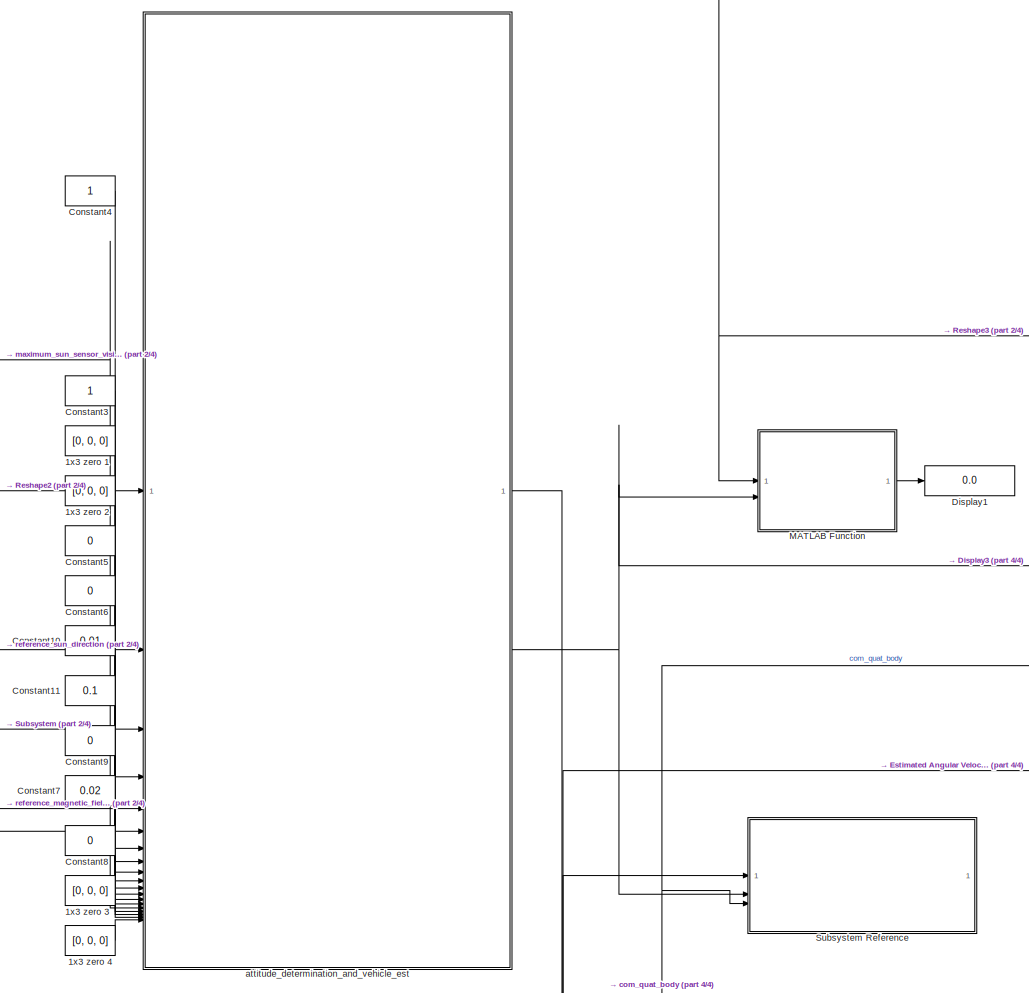
[diagram: root canvas - part 1/4, right side, full height]
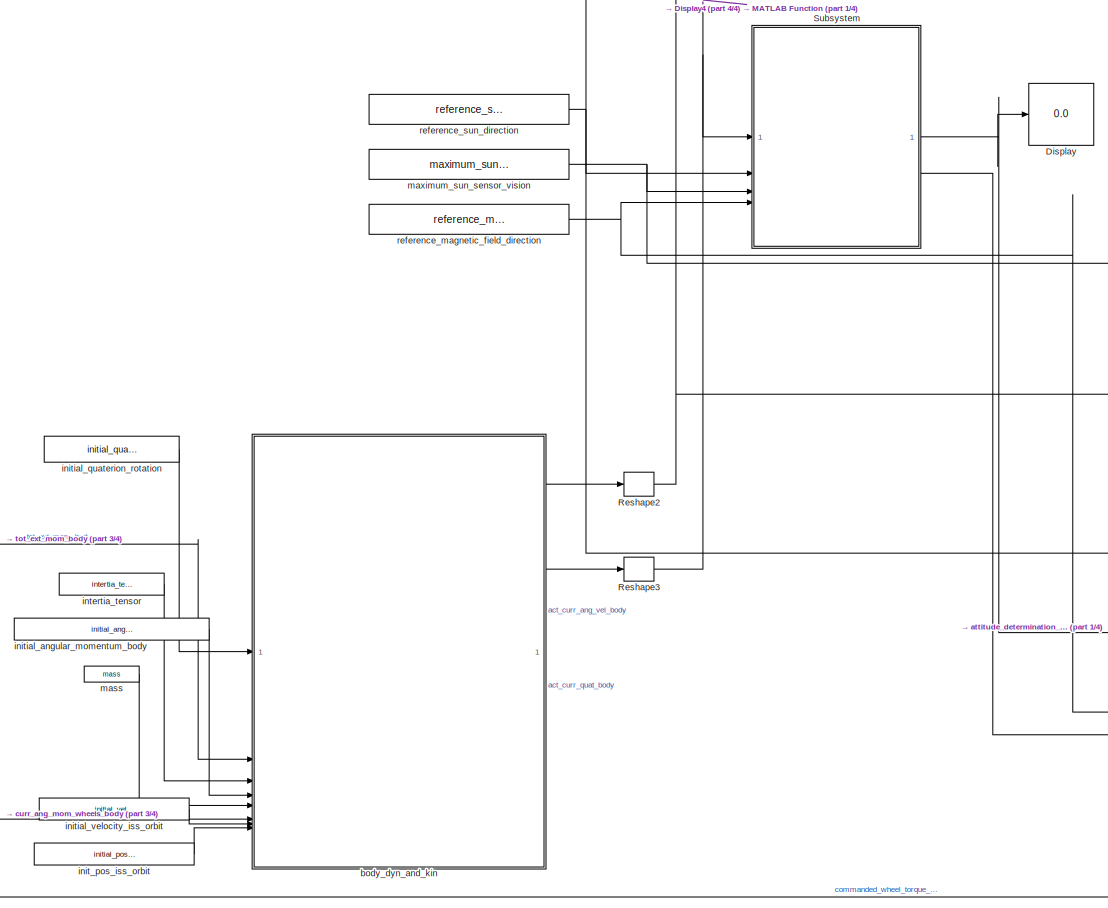
[diagram: root canvas - part 2/4, center side, full height]
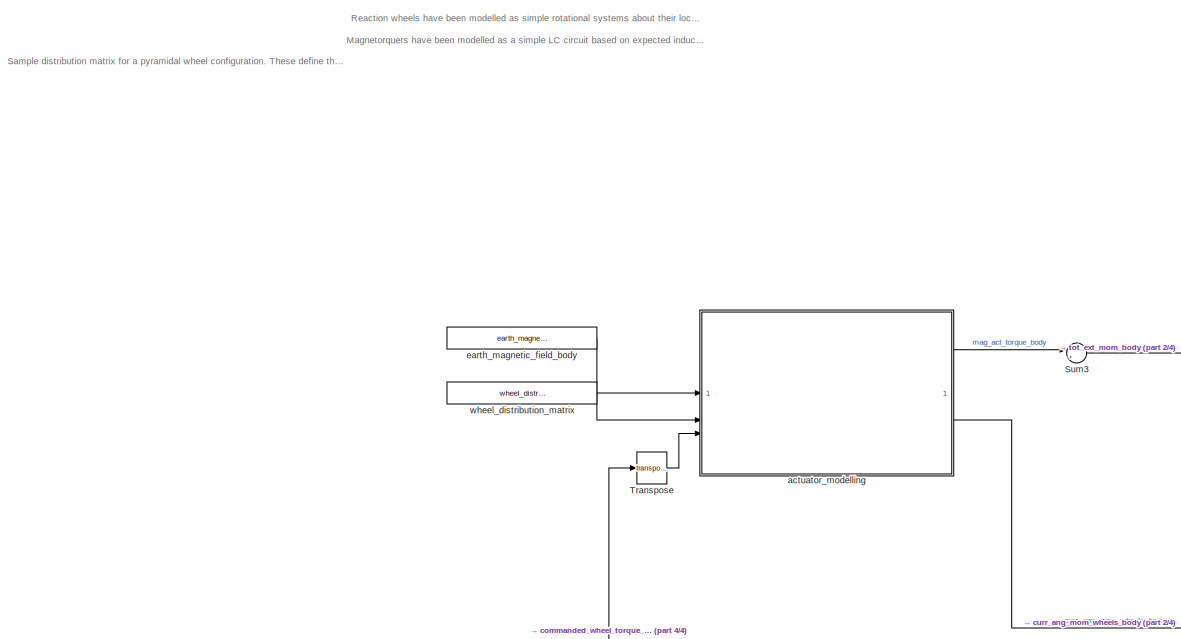
[diagram: root canvas - part 3/4, middle left region]
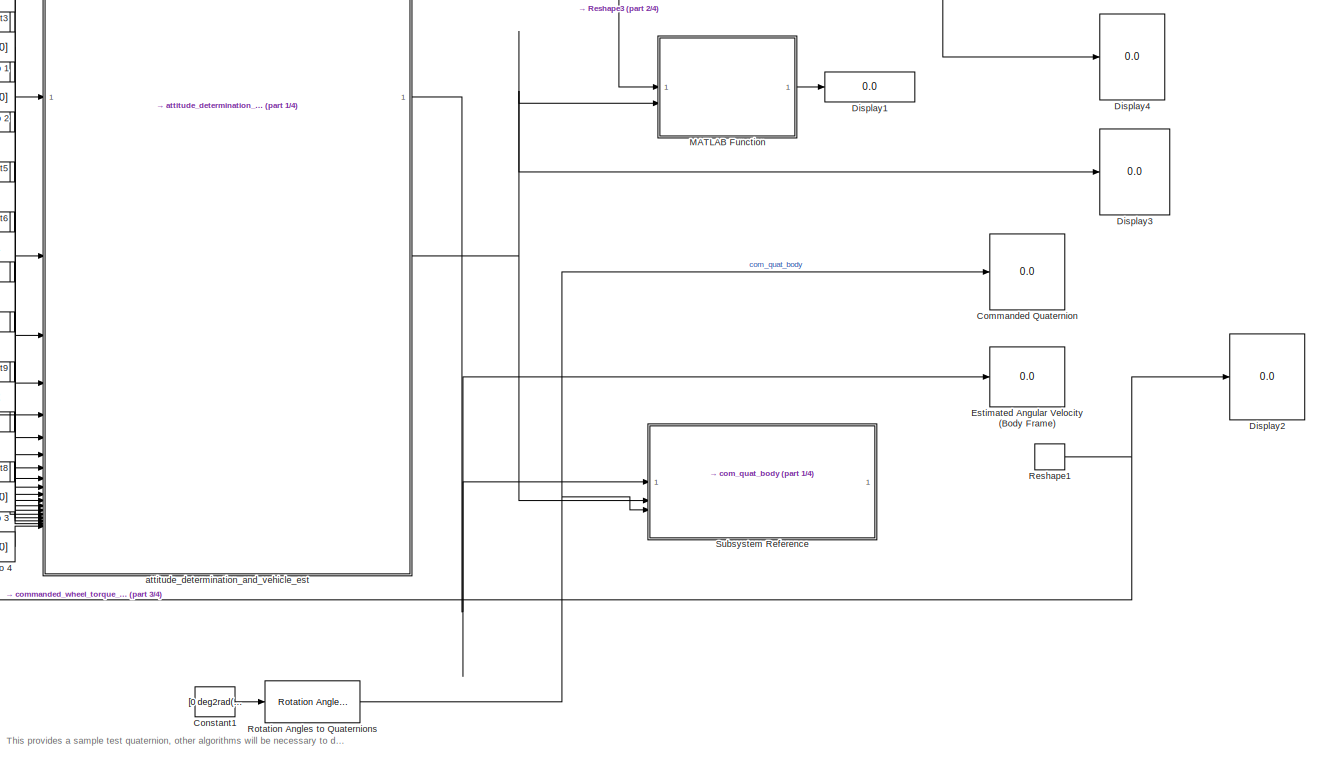
[diagram: root canvas - part 4/4, bottom right region]
MODEL slx_5dd3871f96f5
KIND model
CONFIG AbsTol = auto
CONFIG EnableMultiTasking = off
CONFIG FixedStep = 0.02
CONFIG MaxStep = 1
CONFIG MinStep = 0.001
CONFIG RelTol = 1e-3
CONFIG SampleTimeConstraint = Unconstrained
CONFIG SolverName = FixedStepAuto
CONFIG StartTime = 0.0
CONFIG StopTime = 7200
WORKSPACE source: mxarray member
WORKSPACE earth_magnetic_field_body = [0 0 0]
WORKSPACE initial_angular_momentum_body = 0
WORKSPACE initial_position_iss_orbit = 0
WORKSPACE initial_quaterion_rotation = 0
WORKSPACE initial_velocity_iss_orbit = 0
WORKSPACE intertia_tensor = 0
WORKSPACE mass = 0
WORKSPACE maximum_sun_sensor_vision = 0
WORKSPACE reference_magnetic_field_direction = 0
WORKSPACE reference_sun_direction = 0
WORKSPACE wheel_distribution_matrix = [1 0 0 0 1 0 0 0 1 0 0 1]
BLOCK [Constant] 1x3 zero 1
  Value = [0, 0, 0]
BLOCK [Constant] 1x3 zero 2
  Value = [0, 0, 0]
BLOCK [Constant] 1x3 zero 3
  Value = [0, 0, 0]
BLOCK [Constant] 1x3 zero 4
  Value = [0, 0, 0]
BLOCK [Display] Commanded Quaternion
  Decimation = 1
BLOCK [Constant] Constant1
  Value = [0 deg2rad(135) deg2rad(-30)]
BLOCK [Constant] Constant10
  Value = 0.01
BLOCK [Constant] Constant11
  Value = 0.1
BLOCK [Constant] Constant3
  OutDataTypeStr = boolean
BLOCK [Constant] Constant4
  OutDataTypeStr = boolean
BLOCK [Constant] Constant5
  OutDataTypeStr = boolean
  Value = 0
BLOCK [Constant] Constant6
  OutDataTypeStr = boolean
  Value = 0
BLOCK [Constant] Constant7
  Value = 0.02
BLOCK [Constant] Constant8
  OutDataTypeStr = boolean
  Value = 0
BLOCK [Constant] Constant9
  Value = 0
BLOCK [Display] Display
  Decimation = 1
BLOCK [Display] Display1
  Decimation = 1
BLOCK [Display] Display2
  Decimation = 1
BLOCK [Display] Display3
  Decimation = 1
BLOCK [Display] Display4
  Decimation = 1
BLOCK [Display] Estimated Angular Velocity (Body Frame)
  Decimation = 1
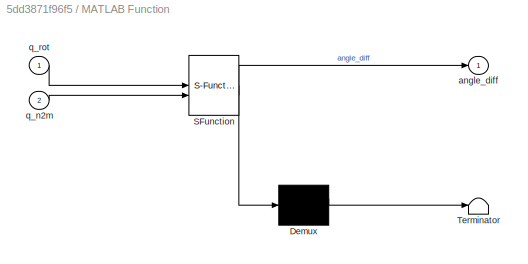
BLOCK [SubSystem] MATLAB Function
  ErrorFcn = Stateflow.Translate.translate
  PermitHierarchicalResolution = ExplicitOnly
  SFBlockType = MATLAB Function
  TreatAsAtomicUnit = on
BLOCK [Demux] MATLAB Function/ Demux 
  Outputs = 1
BLOCK [S-Function] MATLAB Function/ SFunction 
  EnableBusSupport = on
  FunctionName = sf_sfun
  PortCounts = [2 2]
  SFcnIsStateOwnerBlock = off
  SFunctionDeploymentMode = off
  Tag = Stateflow S-Function 3
BLOCK [Terminator] MATLAB Function/ Terminator 
BLOCK [Outport] MATLAB Function/angle_diff
BLOCK [Inport] MATLAB Function/q_n2m
  Port = 2
BLOCK [Inport] MATLAB Function/q_rot
BLOCK [Reshape] Reshape1
  OutputDimensionality = Row vector (2-D)
BLOCK [Reshape] Reshape2
  OutputDimensionality = Row vector (2-D)
BLOCK [Reshape] Reshape3
  OutputDimensionality = Row vector (2-D)
BLOCK [Reference] Rotation Angles to Quaternions  REF=sharedtransform/Rotation Angles to Quaternions
  AttributesFormatString = Rotation Order: %<rotationOrder>
  LibrarySourceBlock = aerolibtransform2/Rotation Angles to Quaternions
  SourceBlock = sharedtransform/Rotation Angles to Quaternions
  SourceType = Ang2Quat
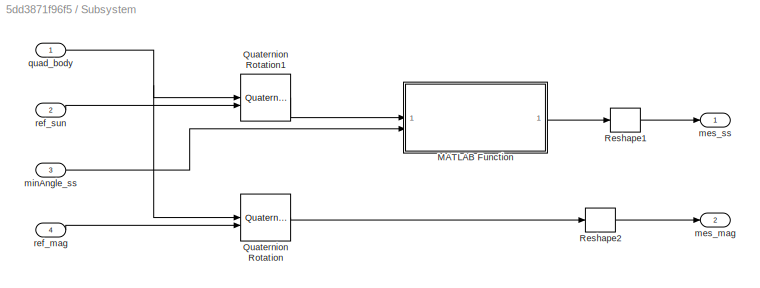
BLOCK [SubSystem] Subsystem
  TreatAsAtomicUnit = on
BLOCK [SubSystem] Subsystem Reference
  ReferencedSubsystem = attitude_control
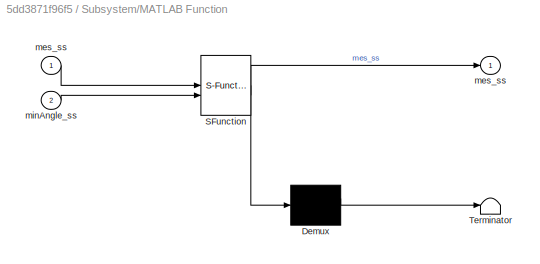
BLOCK [SubSystem] Subsystem/MATLAB Function
  ErrorFcn = Stateflow.Translate.translate
  PermitHierarchicalResolution = ExplicitOnly
  SFBlockType = MATLAB Function
  TreatAsAtomicUnit = on
BLOCK [Demux] Subsystem/MATLAB Function/ Demux 
  Outputs = 1
BLOCK [S-Function] Subsystem/MATLAB Function/ SFunction 
  EnableBusSupport = on
  FunctionName = sf_sfun
  PortCounts = [2 2]
  SFcnIsStateOwnerBlock = off
  SFunctionDeploymentMode = off
  Tag = Stateflow S-Function 1
BLOCK [Terminator] Subsystem/MATLAB Function/ Terminator 
BLOCK [Outport] Subsystem/MATLAB Function/mes_ss
BLOCK [Inport] Subsystem/MATLAB Function/mes_ss 
BLOCK [Inport] Subsystem/MATLAB Function/minAngle_ss
  Port = 2
BLOCK [Reference] Subsystem/Quaternion Rotation  REF=aerolibutil/Quaternion
Rotation
  SourceBlock = aerolibutil/Quaternion\nRotation
  SourceType = Quaternion Rotation
BLOCK [Reference] Subsystem/Quaternion Rotation1  REF=aerolibutil/Quaternion
Rotation
  SourceBlock = aerolibutil/Quaternion\nRotation
  SourceType = Quaternion Rotation
BLOCK [Reshape] Subsystem/Reshape1
  OutputDimensionality = Row vector (2-D)
BLOCK [Reshape] Subsystem/Reshape2
  OutputDimensionality = Row vector (2-D)
BLOCK [Outport] Subsystem/mes_mag
  Port = 2
BLOCK [Outport] Subsystem/mes_ss
BLOCK [Inport] Subsystem/minAngle_ss
  Port = 3
BLOCK [Inport] Subsystem/quad_body
BLOCK [Inport] Subsystem/ref_mag
  Port = 4
BLOCK [Inport] Subsystem/ref_sun
  Port = 2
BLOCK [Sum] Sum3
  Inputs = |++
BLOCK [Math] Transpose
  Operator = transpose
BLOCK [SubSystem] actuator_modelling
  ReferencedSubsystem = actuator_modelling
BLOCK [SubSystem] attitude_determination_and_vehicle_est
  PermitHierarchicalResolution = ExplicitOnly
  PortSchema = {"entries":[{"content":{"sides":[{"content":{"connectorIds":["In1","In2","In3","In4","In15","In5","In6","In7","In8","In9","In10","In11","In12","In13","In14","In16","In17","In18","In19"]},"type":"ConnectorPlacement.EquallySpacedRectSide","uuid":"3b22937b-158d-42bc-8266-221df4d5bb4f"},{"content":{"connectorIds":["Out1","Out2"],"side":"RIGHT"},"type":"ConnectorPlacement.EquallySpacedRectSide","uuid":...<+347ch>
  ReferencedSubsystem = attitude_determination_and_vehicle_est
  SystemSampleTime = 0.02
  TreatAsAtomicUnit = on
BLOCK [SubSystem] body_dyn_and_kin
  ReferencedSubsystem = body_dyn_and_kin
BLOCK [Constant] earth_magnetic_field_body
  Value = earth_magnetic_field_body
BLOCK [Constant] init_pos_iss_orbit
  Value = initial_position_iss_orbit
BLOCK [Constant] initial_angular_momentum_body
  Value = initial_angular_momentum_body
BLOCK [Constant] initial_quaterion_rotation
  Value = initial_quaterion_rotation
BLOCK [Constant] initial_velocity_iss_orbit
  Value = initial_velocity_iss_orbit
BLOCK [Constant] intertia_tensor
  Value = intertia_tensor
BLOCK [Constant] mass
  Value = mass
BLOCK [Constant] maximum_sun_sensor_vision
  Value = maximum_sun_sensor_vision
BLOCK [Constant] reference_magnetic_field_direction
  Value = reference_magnetic_field_direction
  VectorParams1D = off
BLOCK [Constant] reference_sun_direction
  Value = reference_sun_direction
  VectorParams1D = off
BLOCK [Constant] wheel_distribution_matrix
  Value = wheel_distribution_matrix
ANNOTATION (root): Reaction wheels have been modelled as simple rotational systems about their local rotational axes. The usage of the wheel distribution matrix has been used to determine their angular momentum with respect to the body frame. Magnetorquers have been modelled as a simple LC circuit based on expected inductance and resistance of the magnetorquer coil.
ANNOTATION (root): Sample distribution matrix for a pyramidal wheel configuration. These define the unit vectors of the rotational axes of the reaction wheels in the body frame and are similar to the configuration employed on our CubeSat.
ANNOTATION (root): This provides a sample test quaternion, other algorithms will be necessary to determine this commanded attitude.
LINE 1x3 zero 1:1 -> attitude_determination_and_vehicle_est:8
LINE 1x3 zero 2:1 -> attitude_determination_and_vehicle_est:9
LINE 1x3 zero 3:1 -> attitude_determination_and_vehicle_est:18
LINE 1x3 zero 4:1 -> attitude_determination_and_vehicle_est:19
LINE Constant10:1 -> attitude_determination_and_vehicle_est:12
LINE Constant11:1 -> attitude_determination_and_vehicle_est:13
LINE Constant1:1 -> Rotation Angles to Quaternions:1
LINE Constant3:1 -> attitude_determination_and_vehicle_est:7
LINE Constant4:1 -> attitude_determination_and_vehicle_est:4
LINE Constant5:1 -> attitude_determination_and_vehicle_est:10
LINE Constant6:1 -> attitude_determination_and_vehicle_est:11
LINE Constant7:1 -> attitude_determination_and_vehicle_est:16
LINE Constant8:1 -> attitude_determination_and_vehicle_est:17
LINE Constant9:1 -> attitude_determination_and_vehicle_est:14
LINE MATLAB Function:1 -> Display1:1
NET Reshape1:1 -> Display2:1, Transpose:1
LINE Reshape2:1 -> attitude_determination_and_vehicle_est:1
NET Reshape3:1 -> Display4:1, MATLAB Function:1, Subsystem:1
NET Rotation Angles to Quaternions:1 -> Commanded Quaternion:1, Subsystem Reference:3
LINE Subsystem/MATLAB Function:1 -> Subsystem/Reshape1:1
LINE Subsystem/Quaternion Rotation1:1 -> Subsystem/MATLAB Function:1
LINE Subsystem/Quaternion Rotation:1 -> Subsystem/Reshape2:1
LINE Subsystem/Reshape1:1 -> Subsystem/mes_ss:1
LINE Subsystem/Reshape2:1 -> Subsystem/mes_mag:1
LINE Subsystem/minAngle_ss:1 -> Subsystem/MATLAB Function:2
NET Subsystem/quad_body:1 -> Subsystem/Quaternion Rotation1:1, Subsystem/Quaternion Rotation:1
LINE Subsystem/ref_mag:1 -> Subsystem/Quaternion Rotation:2
LINE Subsystem/ref_sun:1 -> Subsystem/Quaternion Rotation1:2
NET Subsystem:1 -> Display:1, attitude_determination_and_vehicle_est:3
LINE Subsystem:2 -> attitude_determination_and_vehicle_est:6
LINE Sum3:1 -> body_dyn_and_kin:3
LINE Transpose:1 -> actuator_modelling:3
LINE actuator_modelling:1 -> Sum3:1
LINE actuator_modelling:2 -> body_dyn_and_kin:8
NET attitude_determination_and_vehicle_est:1 -> Estimated Angular Velocity (Body Frame):1, Subsystem Reference:1
NET attitude_determination_and_vehicle_est:2 -> Display3:1, MATLAB Function:2, Subsystem Reference:2
LINE body_dyn_and_kin:1 -> Reshape2:1
LINE body_dyn_and_kin:2 -> Reshape3:1
LINE earth_magnetic_field_body:1 -> actuator_modelling:1
LINE init_pos_iss_orbit:1 -> body_dyn_and_kin:10
LINE initial_angular_momentum_body:1 -> body_dyn_and_kin:5
LINE initial_quaterion_rotation:1 -> body_dyn_and_kin:1
LINE initial_velocity_iss_orbit:1 -> body_dyn_and_kin:9
LINE intertia_tensor:1 -> body_dyn_and_kin:4
LINE mass:1 -> body_dyn_and_kin:6
NET maximum_sun_sensor_vision:1 -> Subsystem:3, attitude_determination_and_vehicle_est:15
NET reference_magnetic_field_direction:1 -> Subsystem:4, attitude_determination_and_vehicle_est:5
NET reference_sun_direction:1 -> Subsystem:2, attitude_determination_and_vehicle_est:2
LINE wheel_distribution_matrix:1 -> actuator_modelling:2
note: NET lines group one-source signal fan-out (src -> all destinations, sorted); 1:1 wires keep LINE
CHART MATLAB Function states=1 transitions=1
  STATE_LABEL 'eML_blk_kernel()'
  STATE_LABEL 'SCRIPT:\nfunction angle_diff = fcn(q_rot,q_n2m)\n\n    q_rel = quatmultiply(q_rot, quatinv(q_n2m));\n    cos_theta_over_2 = abs(q_rel(1));\n    angle_diff = 2 * acos(cos_theta_over_2)*180/pi;\n'
CHART Subsystem/MATLAB Function states=1 transitions=1
  STATE_LABEL 'eML_blk_kernel()'
  STATE_LABEL 'SCRIPT:\nfunction mes_ss = fcn(mes_ss, minAngle_ss)\n    mes_ss = (abs(mes_ss) > cosd(minAngle_ss)).*mes_ss;\n'
CHART  states=0 transitions=0
CHART  states=0 transitions=0
